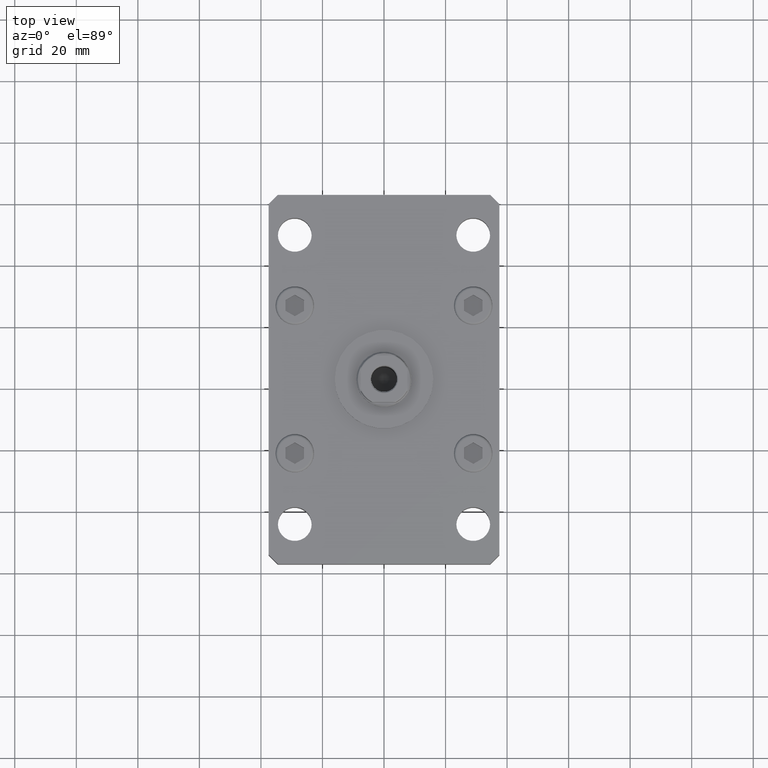
[diagram: clean part render]
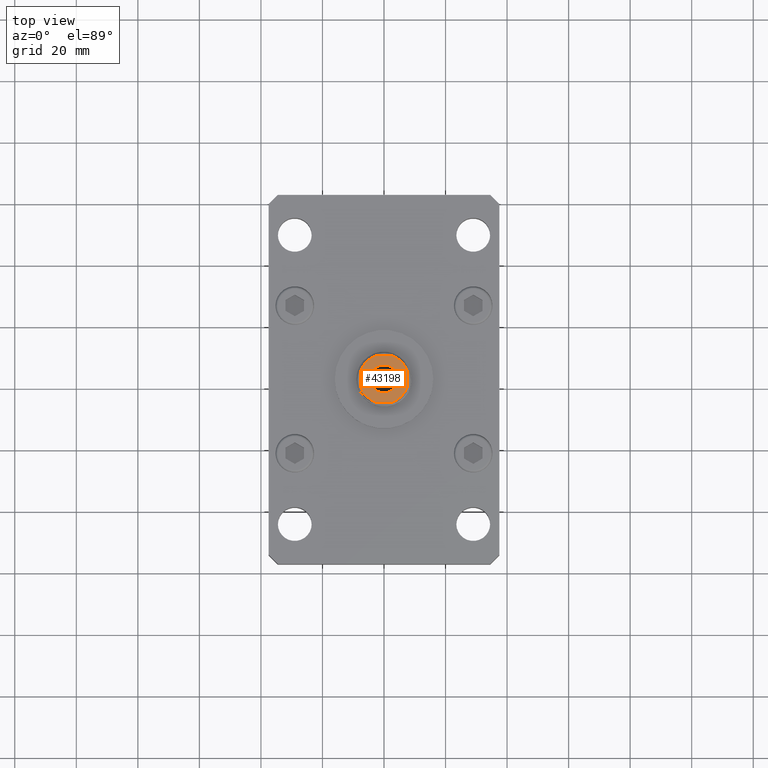
[diagram: same view with one face highlighted and labeled with its STEP entity id]
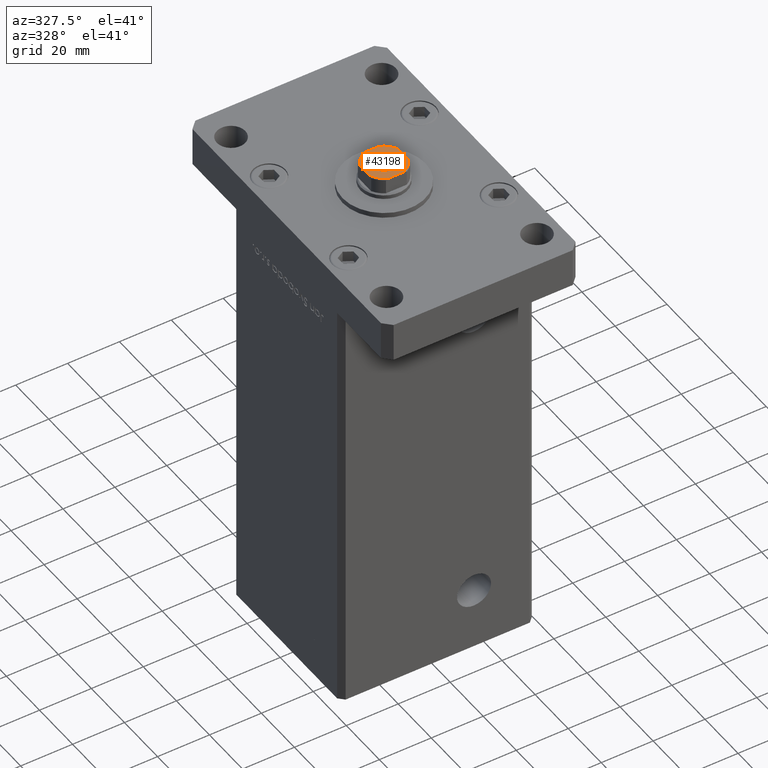
[diagram: same view with one face highlighted and labeled with its STEP entity id]
A machine part, top view. The second image highlights one B-rep face of the part: STEP entity #43198.
A second angle (auxiliary view) of the same face is appended — the face is thin or edge-on in the first view.
In plain terms, the highlighted planar face has unit normal (0, 0, 1).
Its self-contained STEP definition (entity closure, byte-faithful):
#183 = FACE_OUTER_BOUND ( 'NONE', #51161, .T. ) ;
#1402 = CARTESIAN_POINT ( 'NONE',  ( -7.499999999999998224, 2.783882181415015644, 163.0000000000000000 ) ) ;
#1411 = EDGE_CURVE ( 'NONE', #30346, #39384, #12832, .T. ) ;
#1627 = EDGE_CURVE ( 'NONE', #19720, #39308, #17260, .T. ) ;
#2028 = ORIENTED_EDGE ( 'NONE', *, *, #25586, .T. ) ;
#2099 = CARTESIAN_POINT ( 'NONE',  ( -2.783882181415010315, -7.500000000000000888, 163.0000000000000000 ) ) ;
#2473 = LINE ( 'NONE', #27424, #17199 ) ;
#2940 = EDGE_CURVE ( 'NONE', #6219, #52563, #2473, .T. ) ;
#4199 = DIRECTION ( 'NONE',  ( -0.000000000000000000, 0.000000000000000000, 1.000000000000000000 ) ) ;
#4787 = CARTESIAN_POINT ( 'NONE',  ( 7.500000000000001776, 7.500000000000000000, 163.0000000000000000 ) ) ;
#5006 = DIRECTION ( 'NONE',  ( 1.000000000000000000, 0.000000000000000000, 0.000000000000000000 ) ) ;
#5486 = CARTESIAN_POINT ( 'NONE',  ( 4.549999999999998934, 0.000000000000000000, 163.0000000000000000 ) ) ;
#6121 = VECTOR ( 'NONE', #9942, 1000.000000000000000 ) ;
#6219 = VERTEX_POINT ( 'NONE', #1402 ) ;
#8033 = PLANE ( 'NONE',  #52856 ) ;
#8821 = ORIENTED_EDGE ( 'NONE', *, *, #1627, .T. ) ;
#9258 = CARTESIAN_POINT ( 'NONE',  ( 0.000000000000000000, 0.000000000000000000, 163.0000000000000000 ) ) ;
#9942 = DIRECTION ( 'NONE',  ( -1.000000000000000000, -5.782411586589357392E-17, -0.000000000000000000 ) ) ;
#10227 = CARTESIAN_POINT ( 'NONE',  ( -4.549999999999998934, 5.572142936120454369E-16, 163.0000000000000000 ) ) ;
#10265 = EDGE_CURVE ( 'NONE', #25426, #42447, #47108, .T. ) ;
#10488 = DIRECTION ( 'NONE',  ( -0.000000000000000000, 0.000000000000000000, 1.000000000000000000 ) ) ;
#11240 = AXIS2_PLACEMENT_3D ( 'NONE', #9258, #49954, #33400 ) ;
#11704 = AXIS2_PLACEMENT_3D ( 'NONE', #49510, #28892, #45422 ) ;
#12016 = VECTOR ( 'NONE', #15613, 1000.000000000000000 ) ;
#12832 = CIRCLE ( 'NONE', #44879, 4.549999999999998934 ) ;
#13587 = CIRCLE ( 'NONE', #18757, 4.549999999999998934 ) ;
#14587 = DIRECTION ( 'NONE',  ( 0.000000000000000000, -0.000000000000000000, -1.000000000000000000 ) ) ;
#14813 = CARTESIAN_POINT ( 'NONE',  ( 0.000000000000000000, 0.000000000000000000, 163.0000000000000000 ) ) ;
#14955 = ORIENTED_EDGE ( 'NONE', *, *, #2940, .T. ) ;
#15613 = DIRECTION ( 'NONE',  ( 1.000000000000000000, 5.782411586589358625E-17, 0.000000000000000000 ) ) ;
#16093 = ORIENTED_EDGE ( 'NONE', *, *, #1411, .T. ) ;
#17032 = ORIENTED_EDGE ( 'NONE', *, *, #23279, .T. ) ;
#17199 = VECTOR ( 'NONE', #43960, 1000.000000000000000 ) ;
#17260 = LINE ( 'NONE', #4787, #19739 ) ;
#17832 = AXIS2_PLACEMENT_3D ( 'NONE', #14813, #10488, #39773 ) ;
#18757 = AXIS2_PLACEMENT_3D ( 'NONE', #19650, #45156, #44878 ) ;
#19650 = CARTESIAN_POINT ( 'NONE',  ( 0.000000000000000000, 0.000000000000000000, 163.0000000000000000 ) ) ;
#19720 = VERTEX_POINT ( 'NONE', #47067 ) ;
#19739 = VECTOR ( 'NONE', #21593, 1000.000000000000000 ) ;
#20382 = CARTESIAN_POINT ( 'NONE',  ( -2.783882181415013868, 7.499999999999999112, 163.0000000000000000 ) ) ;
#21018 = VERTEX_POINT ( 'NONE', #24168 ) ;
#21593 = DIRECTION ( 'NONE',  ( 1.156482317317871478E-16, 1.000000000000000000, -0.000000000000000000 ) ) ;
#23279 = EDGE_CURVE ( 'NONE', #42447, #6219, #27373, .T. ) ;
#24168 = CARTESIAN_POINT ( 'NONE',  ( 2.783882181415008539, -7.500000000000000888, 163.0000000000000000 ) ) ;
#25426 = VERTEX_POINT ( 'NONE', #30030 ) ;
#25586 = EDGE_CURVE ( 'NONE', #39308, #25426, #36850, .T. ) ;
#25591 = EDGE_CURVE ( 'NONE', #21018, #19720, #31659, .T. ) ;
#26728 = CARTESIAN_POINT ( 'NONE',  ( -7.499999999999998224, -2.783882181415016088, 163.0000000000000000 ) ) ;
#27373 = CIRCLE ( 'NONE', #17832, 8.000000000000000000 ) ;
#27424 = CARTESIAN_POINT ( 'NONE',  ( -7.499999999999998224, 7.499999999999999112, 163.0000000000000000 ) ) ;
#27654 = EDGE_LOOP ( 'NONE', ( #51692, #16093 ) ) ;
#27841 = LINE ( 'NONE', #53578, #12016 ) ;
#28892 = DIRECTION ( 'NONE',  ( -0.000000000000000000, 0.000000000000000000, 1.000000000000000000 ) ) ;
#29472 = EDGE_CURVE ( 'NONE', #39384, #30346, #13587, .T. ) ;
#29570 = ORIENTED_EDGE ( 'NONE', *, *, #35346, .T. ) ;
#29659 = CARTESIAN_POINT ( 'NONE',  ( 7.500000000000000888, 2.783882181415007206, 163.0000000000000000 ) ) ;
#29706 = CARTESIAN_POINT ( 'NONE',  ( 0.000000000000000000, 0.000000000000000000, 163.0000000000000000 ) ) ;
#30030 = CARTESIAN_POINT ( 'NONE',  ( 2.783882181415012980, 7.500000000000000000, 163.0000000000000000 ) ) ;
#30307 = VERTEX_POINT ( 'NONE', #2099 ) ;
#30346 = VERTEX_POINT ( 'NONE', #10227 ) ;
#31099 = CARTESIAN_POINT ( 'NONE',  ( -7.499999999999998224, 7.499999999999999112, 163.0000000000000000 ) ) ;
#31659 = CIRCLE ( 'NONE', #42054, 8.000000000000000000 ) ;
#33112 = ORIENTED_EDGE ( 'NONE', *, *, #42561, .T. ) ;
#33400 = DIRECTION ( 'NONE',  ( 1.000000000000000000, 0.000000000000000000, 0.000000000000000000 ) ) ;
#35207 = CARTESIAN_POINT ( 'NONE',  ( 0.000000000000000000, 0.000000000000000000, 163.0000000000000000 ) ) ;
#35346 = EDGE_CURVE ( 'NONE', #30307, #21018, #27841, .T. ) ;
#36520 = CARTESIAN_POINT ( 'NONE',  ( 0.000000000000000000, 0.000000000000000000, 163.0000000000000000 ) ) ;
#36785 = FACE_BOUND ( 'NONE', #27654, .T. ) ;
#36850 = CIRCLE ( 'NONE', #11704, 8.000000000000000000 ) ;
#39308 = VERTEX_POINT ( 'NONE', #29659 ) ;
#39384 = VERTEX_POINT ( 'NONE', #5486 ) ;
#39773 = DIRECTION ( 'NONE',  ( 1.000000000000000000, 0.000000000000000000, 0.000000000000000000 ) ) ;
#40671 = ORIENTED_EDGE ( 'NONE', *, *, #25591, .T. ) ;
#41094 = ORIENTED_EDGE ( 'NONE', *, *, #10265, .T. ) ;
#41126 = DIRECTION ( 'NONE',  ( -0.000000000000000000, 0.000000000000000000, 1.000000000000000000 ) ) ;
#41402 = DIRECTION ( 'NONE',  ( 1.000000000000000000, 0.000000000000000000, 0.000000000000000000 ) ) ;
#42054 = AXIS2_PLACEMENT_3D ( 'NONE', #29706, #4199, #5006 ) ;
#42447 = VERTEX_POINT ( 'NONE', #20382 ) ;
#42561 = EDGE_CURVE ( 'NONE', #52563, #30307, #52822, .T. ) ;
#43198 = ADVANCED_FACE ( 'NONE', ( #36785, #183 ), #8033, .T. ) ;
#43619 = DIRECTION ( 'NONE',  ( 1.000000000000000000, 0.000000000000000000, 0.000000000000000000 ) ) ;
#43960 = DIRECTION ( 'NONE',  ( 5.782411586589357392E-17, -1.000000000000000000, 0.000000000000000000 ) ) ;
#44878 = DIRECTION ( 'NONE',  ( 1.000000000000000000, 0.000000000000000000, 0.000000000000000000 ) ) ;
#44879 = AXIS2_PLACEMENT_3D ( 'NONE', #35207, #14587, #43619 ) ;
#45156 = DIRECTION ( 'NONE',  ( 0.000000000000000000, -0.000000000000000000, -1.000000000000000000 ) ) ;
#45422 = DIRECTION ( 'NONE',  ( 1.000000000000000000, 0.000000000000000000, 0.000000000000000000 ) ) ;
#47067 = CARTESIAN_POINT ( 'NONE',  ( 7.500000000000000888, -2.783882181415009427, 163.0000000000000000 ) ) ;
#47108 = LINE ( 'NONE', #31099, #6121 ) ;
#49510 = CARTESIAN_POINT ( 'NONE',  ( 0.000000000000000000, 0.000000000000000000, 163.0000000000000000 ) ) ;
#49954 = DIRECTION ( 'NONE',  ( -0.000000000000000000, 0.000000000000000000, 1.000000000000000000 ) ) ;
#51161 = EDGE_LOOP ( 'NONE', ( #14955, #33112, #29570, #40671, #8821, #2028, #41094, #17032 ) ) ;
#51692 = ORIENTED_EDGE ( 'NONE', *, *, #29472, .T. ) ;
#52563 = VERTEX_POINT ( 'NONE', #26728 ) ;
#52822 = CIRCLE ( 'NONE', #11240, 8.000000000000000000 ) ;
#52856 = AXIS2_PLACEMENT_3D ( 'NONE', #36520, #41126, #41402 ) ;
#53578 = CARTESIAN_POINT ( 'NONE',  ( -7.499999999999997335, -7.500000000000000888, 163.0000000000000000 ) ) ;